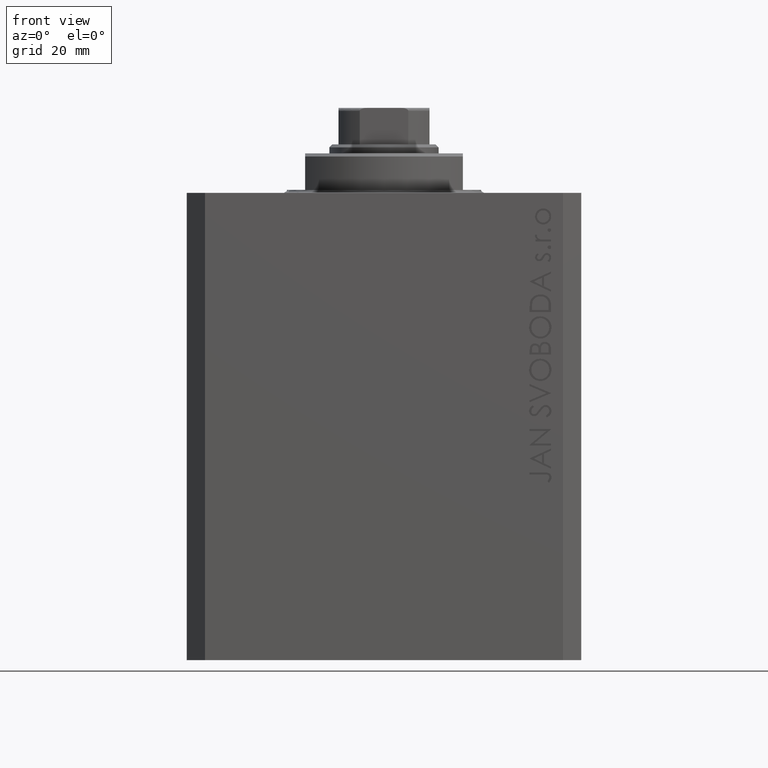
[diagram: clean part render]
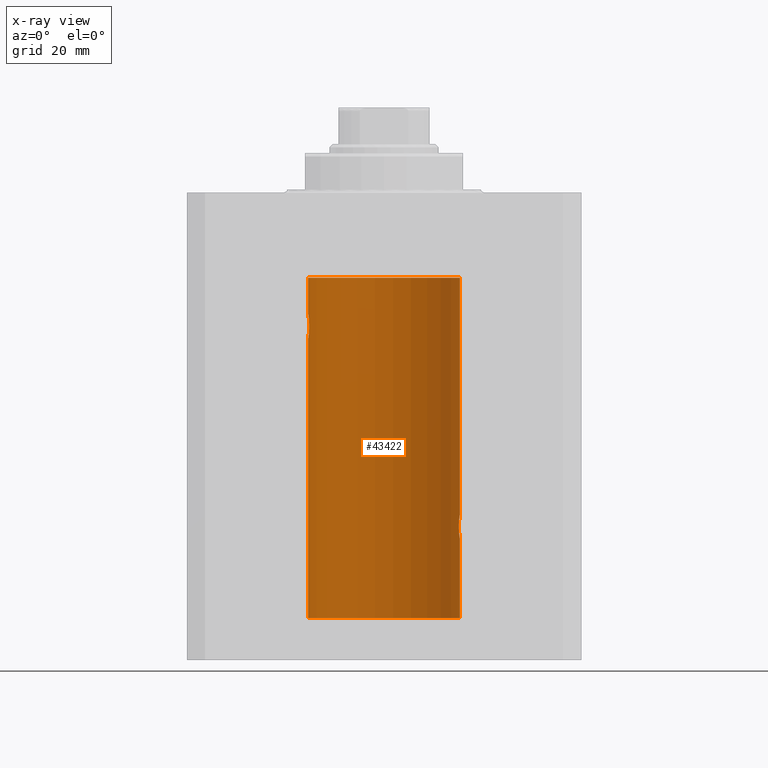
[diagram: x-ray — body ghosted, one internal face saturated and labeled with its STEP entity id]
A machine part, front view, then the same camera in x-ray: the body is ghosted and one INTERNAL B-rep face — a face not visible from any outside direction — is saturated and labeled: STEP entity #43422.
In plain terms, the highlighted cylindrical surface (partial cylindrical patch) has radius 12.5 mm, axis along (0, 0, 1).
Its self-contained STEP definition (entity closure, byte-faithful):
#2 = CARTESIAN_POINT ( 'NONE',  ( -12.50000000000000000, 0.1323736289504353625, -20.00000000000000000 ) ) ;
#125 = LINE ( 'NONE', #41258, #21938 ) ;
#267 = CARTESIAN_POINT ( 'NONE',  ( -12.50000000000000000, 1.530808498934191521E-15, -13.99999999999999822 ) ) ;
#310 = ORIENTED_EDGE ( 'NONE', *, *, #27849, .T. ) ;
#432 = EDGE_CURVE ( 'NONE', #1763, #9764, #34687, .T. ) ;
#444 = CARTESIAN_POINT ( 'NONE',  ( -12.37922086519035325, 1.734998657226764829, -23.00335814299181436 ) ) ;
#570 = LINE ( 'NONE', #17869, #2521 ) ;
#874 = CARTESIAN_POINT ( 'NONE',  ( -12.50000000000000533, 0.1306394121199390135, -24.00000000000000711 ) ) ;
#1763 = VERTEX_POINT ( 'NONE', #4870 ) ;
#2164 = CARTESIAN_POINT ( 'NONE',  ( 12.33896267925302581, 2.000000000000254463, -55.00000000000000000 ) ) ;
#2521 = VECTOR ( 'NONE', #41483, 1000.000000000000000 ) ;
#2527 = CARTESIAN_POINT ( 'NONE',  ( 12.33896267925302581, 2.000000000000254463, -55.00000000000000000 ) ) ;
#3586 = CARTESIAN_POINT ( 'NONE',  ( -12.34922241902463114, 1.935814255713574239, -22.51937350851555308 ) ) ;
#3811 = CARTESIAN_POINT ( 'NONE',  ( -12.46903010196599304, 0.8876934327478135378, -20.20300788371381984 ) ) ;
#3944 = CARTESIAN_POINT ( 'NONE',  ( 12.48395395845270528, 0.6446573166014708534, -53.10222124213520090 ) ) ;
#4030 = CARTESIAN_POINT ( 'NONE',  ( -12.39873273758732175, 1.598680238462371062, -20.77033506126851137 ) ) ;
#4089 = ORIENTED_EDGE ( 'NONE', *, *, #6063, .F. ) ;
#4249 = CARTESIAN_POINT ( 'NONE',  ( -12.46909283808506430, 0.8868029758979402155, -23.79742491916155345 ) ) ;
#4438 = AXIS2_PLACEMENT_3D ( 'NONE', #9826, #33240, #16591 ) ;
#4465 = CARTESIAN_POINT ( 'NONE',  ( -12.43019346654084956, 1.322451657002078340, -20.49398366327208620 ) ) ;
#4870 = CARTESIAN_POINT ( 'NONE',  ( 12.50000000000000000, 0.000000000000000000, -70.09999999999999432 ) ) ;
#5018 = AXIS2_PLACEMENT_3D ( 'NONE', #9885, #16426, #37117 ) ;
#5490 = CARTESIAN_POINT ( 'NONE',  ( 12.50000000000000000, -3.070791583031755813E-15, -57.00000000000000000 ) ) ;
#5972 = DIRECTION ( 'NONE',  ( -0.000000000000000000, -0.000000000000000000, 1.000000000000000000 ) ) ;
#6063 = EDGE_CURVE ( 'NONE', #13738, #10230, #570, .T. ) ;
#6120 = CARTESIAN_POINT ( 'NONE',  ( 12.37760587642916477, 1.747868572747724114, -56.00639653169000098 ) ) ;
#6435 = CARTESIAN_POINT ( 'NONE',  ( 12.33896267925302226, 2.000000000000254463, -54.86934705949917657 ) ) ;
#6957 = CARTESIAN_POINT ( 'NONE',  ( -12.48990118705761532, 0.5184196815546056047, -20.06395648222637007 ) ) ;
#7527 = CARTESIAN_POINT ( 'NONE',  ( 12.50000000000000000, 0.1306079576516677443, -52.99999999999999289 ) ) ;
#7614 = CARTESIAN_POINT ( 'NONE',  ( -12.43034574091277911, 1.321095788880539024, -23.50733550364322255 ) ) ;
#9764 = VERTEX_POINT ( 'NONE', #11993 ) ;
#9826 = CARTESIAN_POINT ( 'NONE',  ( 0.000000000000000000, 0.000000000000000000, -70.09999999999999432 ) ) ;
#9885 = CARTESIAN_POINT ( 'NONE',  ( 0.000000000000000000, 0.000000000000000000, -13.99999999999999822 ) ) ;
#10003 = CARTESIAN_POINT ( 'NONE',  ( 12.49788668346400122, 0.2632864803365719264, -53.01308975838332316 ) ) ;
#10230 = VERTEX_POINT ( 'NONE', #267 ) ;
#10307 = CARTESIAN_POINT ( 'NONE',  ( -12.46021263690096958, 1.002494658017156981, -20.26446744561863156 ) ) ;
#11349 = EDGE_CURVE ( 'NONE', #13738, #21053, #18417, .T. ) ;
#11993 = CARTESIAN_POINT ( 'NONE',  ( -12.50000000000000000, 1.530808498934191521E-15, -70.09999999999999432 ) ) ;
#12164 = CARTESIAN_POINT ( 'NONE',  ( 12.44079900692650931, 1.220007525301745277, -56.59017579083666760 ) ) ;
#12257 = VERTEX_POINT ( 'NONE', #21381 ) ;
#13061 = CARTESIAN_POINT ( 'NONE',  ( 12.33896267925302581, 2.000000000000254907, -55.26143174220785426 ) ) ;
#13156 = CARTESIAN_POINT ( 'NONE',  ( 12.44079117518645461, 1.220047488436375227, -53.40989676335082237 ) ) ;
#13684 = CARTESIAN_POINT ( 'NONE',  ( -12.37018026341338839, 1.797558627508998086, -22.88656313533016373 ) ) ;
#13738 = VERTEX_POINT ( 'NONE', #26720 ) ;
#14261 = CARTESIAN_POINT ( 'NONE',  ( 12.48983962833819028, 0.5199974825204922713, -53.06435160808016605 ) ) ;
#14348 = CARTESIAN_POINT ( 'NONE',  ( -12.40913174964213184, 1.507394620545641439, -23.32102833500698225 ) ) ;
#15540 = CARTESIAN_POINT ( 'NONE',  ( -12.50000000000000000, 1.530808498934191521E-15, -70.09999999999999432 ) ) ;
#15546 = CARTESIAN_POINT ( 'NONE',  ( 12.50000000000000178, 0.1324055009716459952, -56.99999999999999289 ) ) ;
#15864 = CARTESIAN_POINT ( 'NONE',  ( 12.39867611624532806, 1.590019252152835794, -53.77984495929610631 ) ) ;
#16426 = DIRECTION ( 'NONE',  ( 0.000000000000000000, 0.000000000000000000, 1.000000000000000000 ) ) ;
#16591 = DIRECTION ( 'NONE',  ( 1.000000000000000000, 0.000000000000000000, 0.000000000000000000 ) ) ;
#17515 = CARTESIAN_POINT ( 'NONE',  ( -12.33897869807161385, 1.999901172190678089, -21.73788193668374547 ) ) ;
#17741 = CARTESIAN_POINT ( 'NONE',  ( -12.37764291807175354, 1.747608771958140794, -20.99316879552500481 ) ) ;
#17869 = CARTESIAN_POINT ( 'NONE',  ( -12.50000000000000000, 1.530808498934191521E-15, -70.09999999999999432 ) ) ;
#17957 = CARTESIAN_POINT ( 'NONE',  ( -12.48394649977302073, 0.6448065707253024526, -23.89773031393659153 ) ) ;
#18417 = B_SPLINE_CURVE_WITH_KNOTS ( 'NONE', 3,
 ( #27651, #2, #41790, #6957, #34611, #3811, #10307, #34833, #4465, #4030, #17741, #21334, #17515, #24936, #31254, #3586, #20676, #13684, #444, #38425, #14348, #7614, #34385, #35051, #4249, #17957, #31033, #31689, #874, #41356 ),
 .UNSPECIFIED., .F., .F.,
 ( 4, 2, 2, 2, 2, 2, 2, 2, 2, 2, 2, 2, 2, 2, 4 ),
 ( 1.814683826656258666E-20, 0.0003914362731607577369, 0.0007828725463215154739, 0.001174308819482273265, 0.001565745092643030948, 0.002348617638964546530, 0.003131490185286061895, 0.003522926458446825216, 0.003914362731607588103, 0.004305799004768351423, 0.004697235277929114744, 0.005088671551089878065, 0.005480107824250641385, 0.005871544097411404706, 0.006262980370572168026 ),
 .UNSPECIFIED. ) ;
#19165 = CARTESIAN_POINT ( 'NONE',  ( 12.43016561391612029, 1.322713721413891319, -56.50578877836698410 ) ) ;
#19206 = B_SPLINE_CURVE_WITH_KNOTS ( 'NONE', 3,
 ( #36025, #15546, #29286, #22992, #42982, #43889, #19385, #12164, #19165, #33111, #6120, #29520, #13061, #2527 ),
 .UNSPECIFIED., .F., .F.,
 ( 4, 2, 2, 2, 2, 2, 4 ),
 ( 4.122900576430715099E-18, 0.0003915305205218091544, 0.0007830610410436140804, 0.001174591561565418952, 0.001566122082087223824, 0.002349183123130847879, 0.003132244164174471934 ),
 .UNSPECIFIED. ) ;
#19378 = LINE ( 'NONE', #15540, #32891 ) ;
#19385 = CARTESIAN_POINT ( 'NONE',  ( 12.46019522898365395, 1.002712894177340885, -56.73540896027601121 ) ) ;
#19478 = CARTESIAN_POINT ( 'NONE',  ( 12.35520276972935250, 1.897773362058245761, -54.35528278634336630 ) ) ;
#19536 = ORIENTED_EDGE ( 'NONE', *, *, #39248, .T. ) ;
#19934 = CARTESIAN_POINT ( 'NONE',  ( 12.40916530024876963, 1.507117913375724649, -53.67865955049006033 ) ) ;
#19942 = VERTEX_POINT ( 'NONE', #39519 ) ;
#20093 = EDGE_CURVE ( 'NONE', #19942, #12257, #29309, .T. ) ;
#20160 = CARTESIAN_POINT ( 'NONE',  ( 12.34110728646152211, 1.986893050944461780, -54.73661347764981144 ) ) ;
#20436 = ORIENTED_EDGE ( 'NONE', *, *, #26960, .T. ) ;
#20503 = DIRECTION ( 'NONE',  ( -0.000000000000000000, -0.000000000000000000, 1.000000000000000000 ) ) ;
#20676 = CARTESIAN_POINT ( 'NONE',  ( -12.35517291625592051, 1.897967064543089721, -22.64415233770293412 ) ) ;
#21053 = VERTEX_POINT ( 'NONE', #36509 ) ;
#21202 = ORIENTED_EDGE ( 'NONE', *, *, #432, .F. ) ;
#21334 = CARTESIAN_POINT ( 'NONE',  ( -12.34781876294798053, 1.947190906025043633, -21.47436412829509678 ) ) ;
#21381 = CARTESIAN_POINT ( 'NONE',  ( 12.50000000000000000, -7.266276684081261841E-23, -53.00000000000000000 ) ) ;
#21420 = EDGE_LOOP ( 'NONE', ( #44231, #21202, #35125, #310, #27417, #20436, #19536, #4089, #29234 ) ) ;
#21938 = VECTOR ( 'NONE', #5972, 1000.000000000000000 ) ;
#22083 = VERTEX_POINT ( 'NONE', #32714 ) ;
#22627 = CARTESIAN_POINT ( 'NONE',  ( 12.34924836377099844, 1.935649219704940194, -54.48002062127162759 ) ) ;
#22992 = CARTESIAN_POINT ( 'NONE',  ( 12.48989642018887203, 0.5185418732824298438, -56.93601292187604912 ) ) ;
#23983 = CARTESIAN_POINT ( 'NONE',  ( 12.50000000000000000, -7.266276684081261841E-23, -53.00000000000000000 ) ) ;
#24053 = DIRECTION ( 'NONE',  ( -0.000000000000000000, -0.000000000000000000, 1.000000000000000000 ) ) ;
#24936 = CARTESIAN_POINT ( 'NONE',  ( -12.33895470450623044, 2.000049200055401766, -22.12992629360264729 ) ) ;
#25813 = CIRCLE ( 'NONE', #5018, 12.50000000000000000 ) ;
#26537 = AXIS2_PLACEMENT_3D ( 'NONE', #44491, #24053, #33940 ) ;
#26720 = CARTESIAN_POINT ( 'NONE',  ( -12.50000000000000000, 1.867773856434666690E-17, -20.00000000000000000 ) ) ;
#26911 = CARTESIAN_POINT ( 'NONE',  ( 12.46910683544638232, 0.8866026273585057016, -53.20247863689694157 ) ) ;
#26960 = EDGE_CURVE ( 'NONE', #12257, #22083, #125, .T. ) ;
#27037 = CARTESIAN_POINT ( 'NONE',  ( 12.50000000000000000, 0.000000000000000000, -70.09999999999999432 ) ) ;
#27417 = ORIENTED_EDGE ( 'NONE', *, *, #20093, .T. ) ;
#27651 = CARTESIAN_POINT ( 'NONE',  ( -12.50000000000000000, 1.867773856434666690E-17, -20.00000000000000000 ) ) ;
#27849 = EDGE_CURVE ( 'NONE', #41823, #19942, #19206, .T. ) ;
#29234 = ORIENTED_EDGE ( 'NONE', *, *, #11349, .T. ) ;
#29286 = CARTESIAN_POINT ( 'NONE',  ( 12.49789833780794268, 0.2625555164371063399, -56.98698170822144959 ) ) ;
#29309 = B_SPLINE_CURVE_WITH_KNOTS ( 'NONE', 3,
 ( #2164, #6435, #20160, #22627, #19478, #43980, #39931, #15864, #19934, #33646, #13156, #33199, #26911, #3944, #14261, #10003, #7527, #23983 ),
 .UNSPECIFIED., .F., .F.,
 ( 4, 2, 2, 2, 2, 2, 2, 2, 4 ),
 ( 0.003132244164174471934, 0.003523586189974247697, 0.003914928215774023459, 0.004306270241573798355, 0.004697612267373574985, 0.005088954293173349880, 0.005480296318973125642, 0.005871638344772901405, 0.006262980370572677168 ),
 .UNSPECIFIED. ) ;
#29520 = CARTESIAN_POINT ( 'NONE',  ( 12.34779119491631150, 1.947363444907014518, -55.52502775168252214 ) ) ;
#30799 = FACE_OUTER_BOUND ( 'NONE', #21420, .T. ) ;
#31033 = CARTESIAN_POINT ( 'NONE',  ( -12.48983485452574982, 0.5201193324741355539, -23.93561774521849372 ) ) ;
#31254 = CARTESIAN_POINT ( 'NONE',  ( -12.34109209020652465, 1.986986967296539897, -22.26269462454597914 ) ) ;
#31689 = CARTESIAN_POINT ( 'NONE',  ( -12.49788564268284041, 0.2633501011236127343, -23.98690384766255335 ) ) ;
#32714 = CARTESIAN_POINT ( 'NONE',  ( 12.50000000000000000, 0.000000000000000000, -13.99999999999999822 ) ) ;
#32891 = VECTOR ( 'NONE', #39386, 1000.000000000000000 ) ;
#33111 = CARTESIAN_POINT ( 'NONE',  ( 12.39869754437268767, 1.598954131913735033, -56.22932152813014284 ) ) ;
#33199 = CARTESIAN_POINT ( 'NONE',  ( 12.46011632531799407, 1.003644408234889429, -53.26516799687669135 ) ) ;
#33240 = DIRECTION ( 'NONE',  ( 0.000000000000000000, 0.000000000000000000, 1.000000000000000000 ) ) ;
#33646 = CARTESIAN_POINT ( 'NONE',  ( 12.43037348241797879, 1.320834183883846435, -53.49243837704294435 ) ) ;
#33650 = EDGE_CURVE ( 'NONE', #9764, #21053, #19378, .T. ) ;
#33793 = EDGE_CURVE ( 'NONE', #1763, #41823, #43883, .T. ) ;
#33940 = DIRECTION ( 'NONE',  ( 1.000000000000000000, 0.000000000000000000, 0.000000000000000000 ) ) ;
#34385 = CARTESIAN_POINT ( 'NONE',  ( -12.44076681548080288, 1.220297236145718944, -23.58991408680628155 ) ) ;
#34611 = CARTESIAN_POINT ( 'NONE',  ( -12.48390768591463207, 0.6455696738844916016, -20.10252270298193977 ) ) ;
#34687 = CIRCLE ( 'NONE', #4438, 12.50000000000000000 ) ;
#34833 = CARTESIAN_POINT ( 'NONE',  ( -12.44082361696003503, 1.219754986802281449, -20.40963319990594016 ) ) ;
#35051 = CARTESIAN_POINT ( 'NONE',  ( -12.46009879577771606, 1.003863686549169465, -23.73470742397611843 ) ) ;
#35125 = ORIENTED_EDGE ( 'NONE', *, *, #33793, .T. ) ;
#35726 = VECTOR ( 'NONE', #20503, 1000.000000000000000 ) ;
#36025 = CARTESIAN_POINT ( 'NONE',  ( 12.50000000000000000, -3.070791583031755813E-15, -57.00000000000000000 ) ) ;
#36509 = CARTESIAN_POINT ( 'NONE',  ( -12.50000000000000000, 1.530808426276628993E-15, -23.99999999999999645 ) ) ;
#37117 = DIRECTION ( 'NONE',  ( 1.000000000000000000, 0.000000000000000000, 0.000000000000000000 ) ) ;
#38425 = CARTESIAN_POINT ( 'NONE',  ( -12.39864157855465088, 1.590288205413973532, -23.21980790594580313 ) ) ;
#39248 = EDGE_CURVE ( 'NONE', #22083, #10230, #25813, .T. ) ;
#39386 = DIRECTION ( 'NONE',  ( -0.000000000000000000, -0.000000000000000000, 1.000000000000000000 ) ) ;
#39519 = CARTESIAN_POINT ( 'NONE',  ( 12.33896267925302581, 2.000000000000254463, -55.00000000000000000 ) ) ;
#39931 = CARTESIAN_POINT ( 'NONE',  ( 12.37925647381943506, 1.734744884174225898, -53.99620732598648942 ) ) ;
#41123 = CYLINDRICAL_SURFACE ( 'NONE', #26537, 12.50000000000000000 ) ;
#41258 = CARTESIAN_POINT ( 'NONE',  ( 12.50000000000000000, 0.000000000000000000, -70.09999999999999432 ) ) ;
#41356 = CARTESIAN_POINT ( 'NONE',  ( -12.50000000000000000, 1.530808426276628993E-15, -23.99999999999999645 ) ) ;
#41483 = DIRECTION ( 'NONE',  ( -0.000000000000000000, -0.000000000000000000, 1.000000000000000000 ) ) ;
#41790 = CARTESIAN_POINT ( 'NONE',  ( -12.49789934882883458, 0.2624928479599910047, -20.01301208516349917 ) ) ;
#41823 = VERTEX_POINT ( 'NONE', #5490 ) ;
#42982 = CARTESIAN_POINT ( 'NONE',  ( 12.48390005916862933, 0.6457215011736597843, -56.89742771554266199 ) ) ;
#43422 = ADVANCED_FACE ( 'NONE', ( #30799 ), #41123, .F. ) ;
#43883 = LINE ( 'NONE', #27037, #35726 ) ;
#43889 = CARTESIAN_POINT ( 'NONE',  ( 12.46901623405144299, 0.8878913781257963267, -56.79689651717551158 ) ) ;
#43980 = CARTESIAN_POINT ( 'NONE',  ( 12.37021546997940113, 1.797317011867410219, -54.11295119741077286 ) ) ;
#44231 = ORIENTED_EDGE ( 'NONE', *, *, #33650, .F. ) ;
#44491 = CARTESIAN_POINT ( 'NONE',  ( 0.000000000000000000, 0.000000000000000000, -70.09999999999999432 ) ) ;